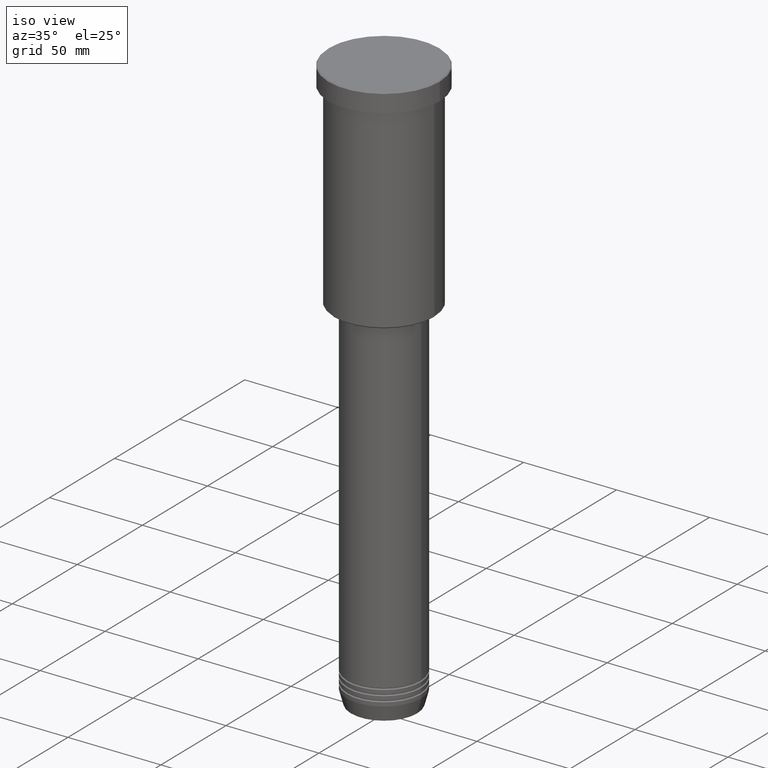
[diagram: clean part render]
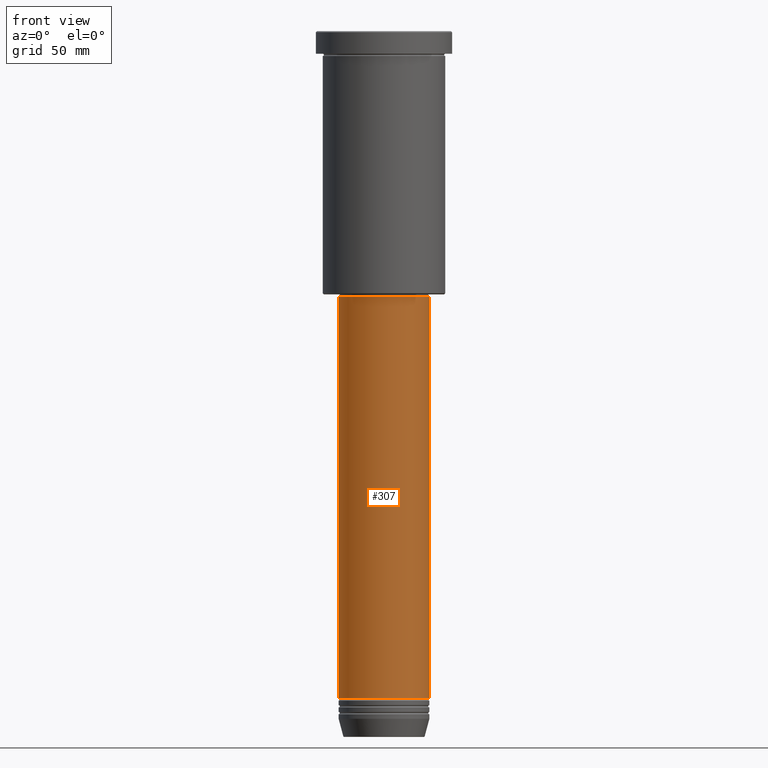
[diagram: tour spotlight — one face highlighted and labeled with its STEP entity id]
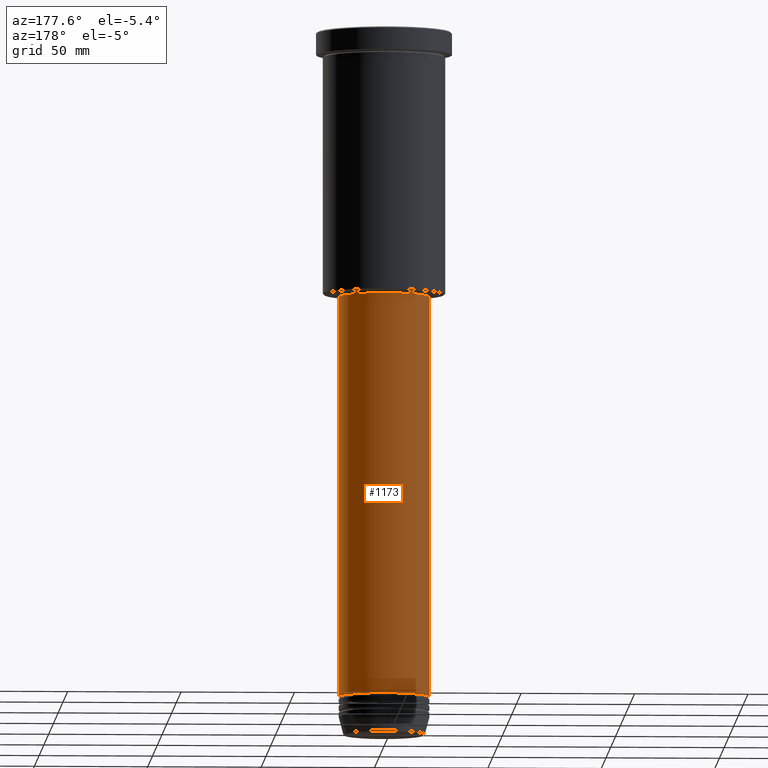
[diagram: tour spotlight — one face highlighted and labeled with its STEP entity id]
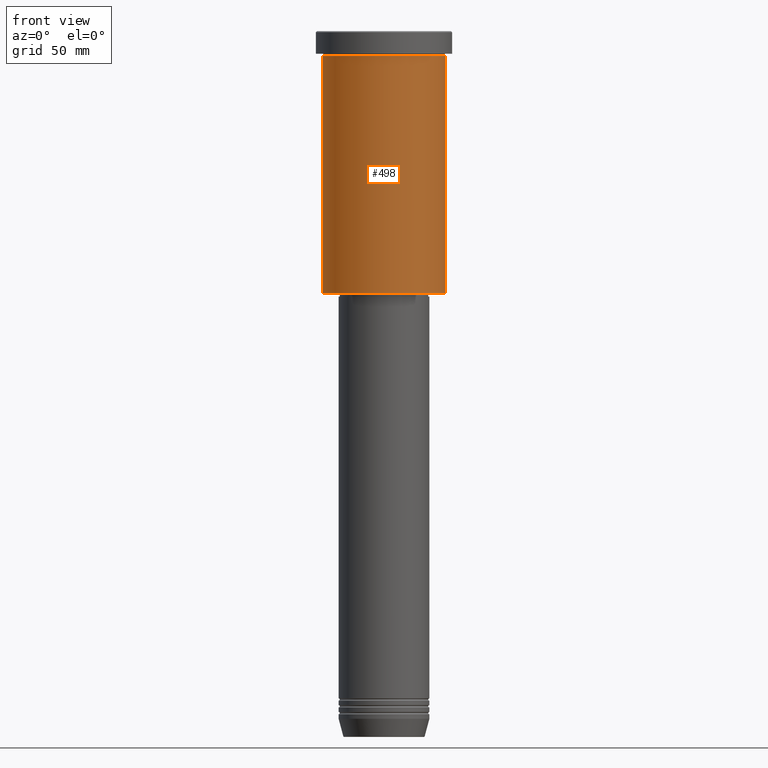
[diagram: tour spotlight — one face highlighted and labeled with its STEP entity id]
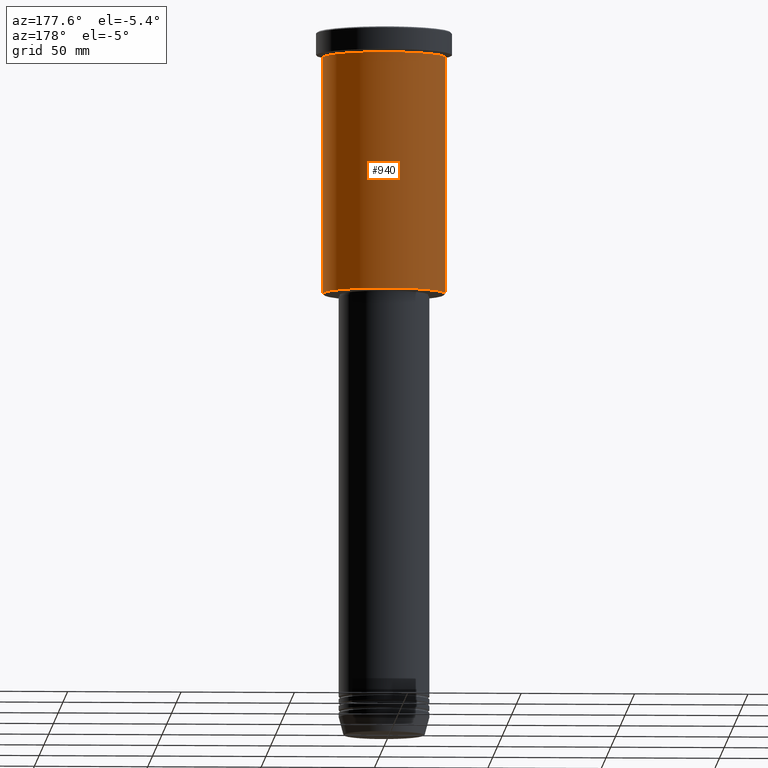
[diagram: tour spotlight — one face highlighted and labeled with its STEP entity id]
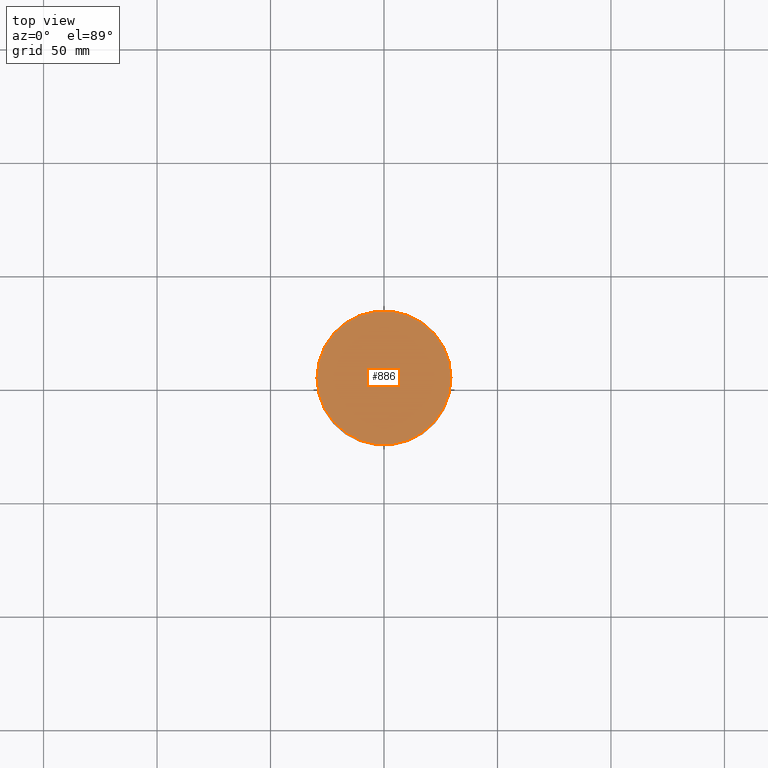
[diagram: tour spotlight — one face highlighted and labeled with its STEP entity id]
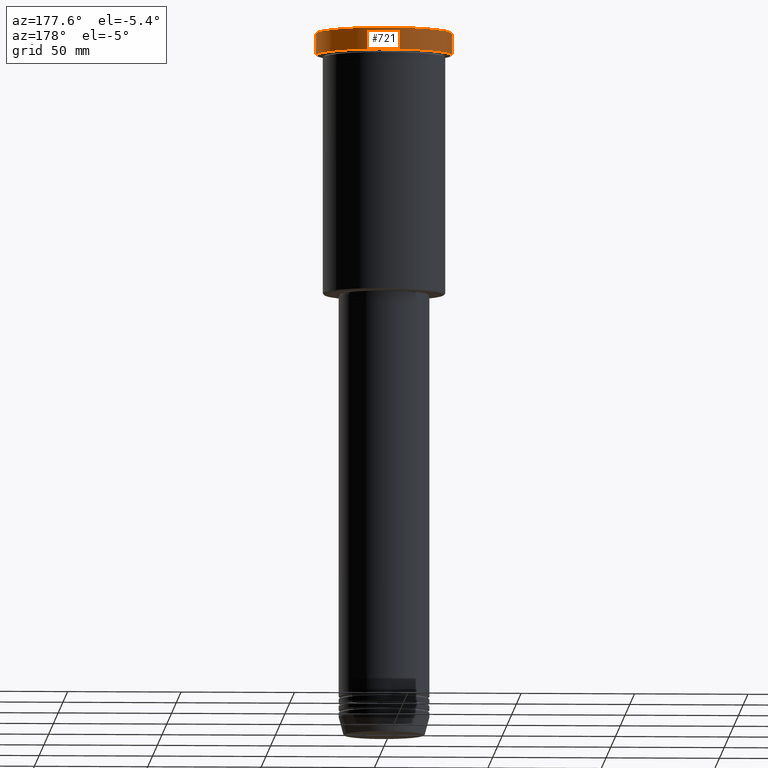
[diagram: tour spotlight — one face highlighted and labeled with its STEP entity id]
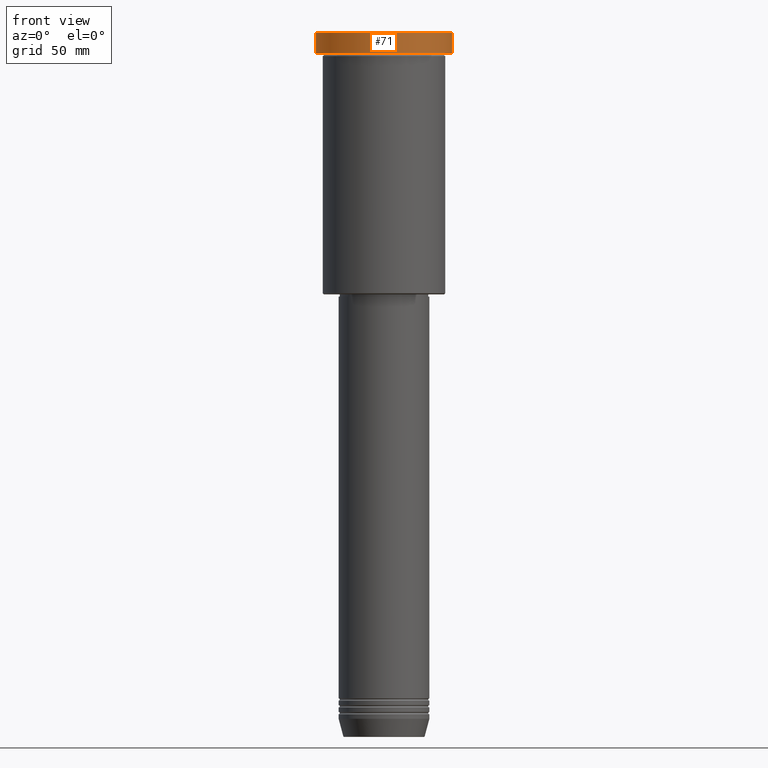
[diagram: tour spotlight — one face highlighted and labeled with its STEP entity id]
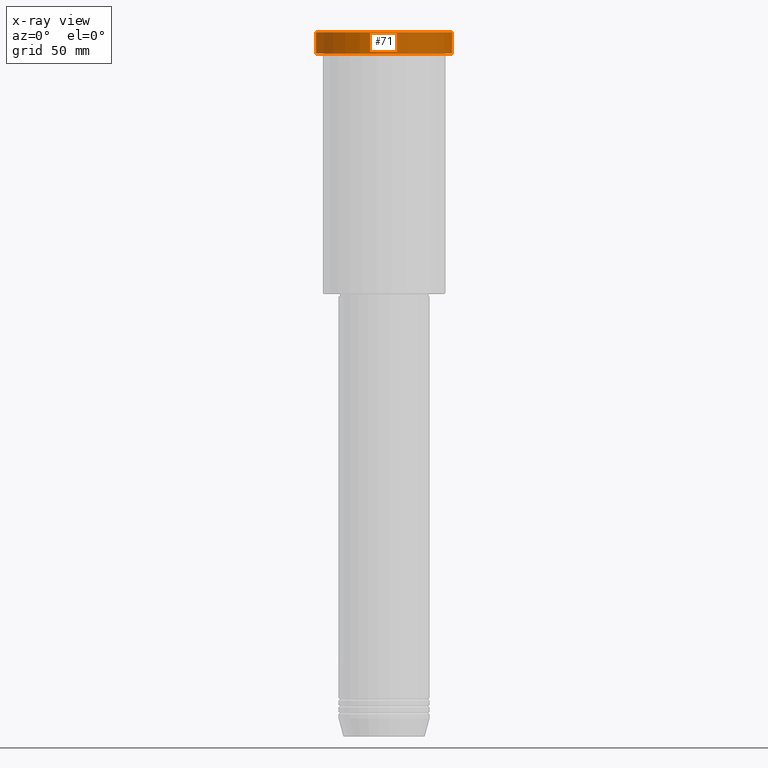
[diagram: x-ray of the same camera — body ghosted, this tour face saturated]
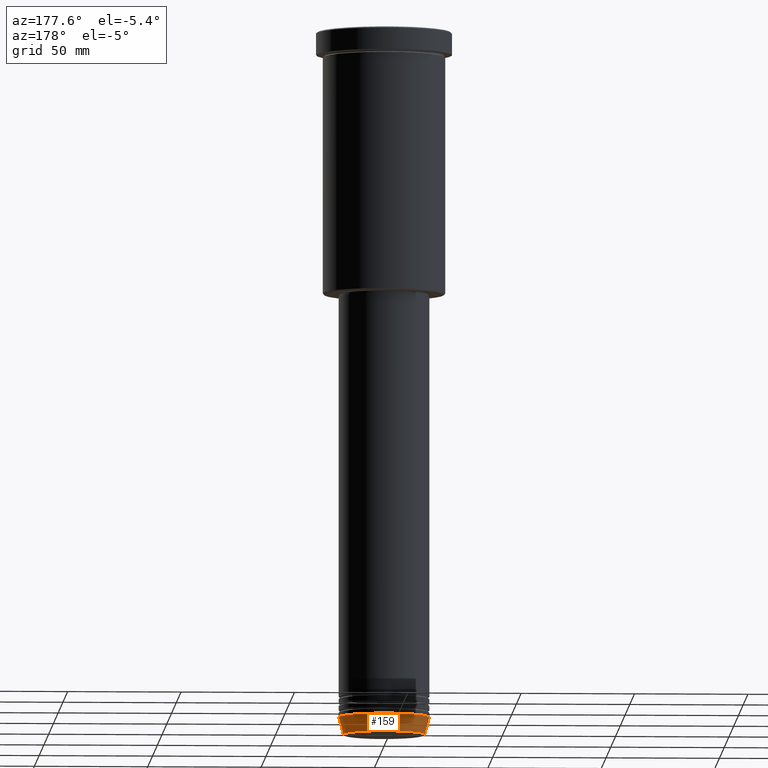
[diagram: tour spotlight — one face highlighted and labeled with its STEP entity id]
A machine part: a face-by-face anatomy tour. The part has 43 B-rep faces; the first image is the clean iso view, then the 8 largest visible faces are spotlighted one at a time (largest first), each with its STEP entity span.

Face 1 — front view, entity #307. In plain terms, the highlighted cylindrical surface (partial cylindrical patch) has radius 20 mm, axis along (-0, -0, 1).
Definition (entity closure, byte-faithful):
#7 = ORIENTED_EDGE ( 'NONE', *, *, #54, .F. ) ;
#54 = EDGE_CURVE ( 'NONE', #1033, #444, #610, .T. ) ;
#65 = DIRECTION ( 'NONE',  ( -0.000000000000000000, -0.000000000000000000, 1.000000000000000000 ) ) ;
#83 = DIRECTION ( 'NONE',  ( 1.000000000000000000, 0.000000000000000000, 0.000000000000000000 ) ) ;
#89 = CARTESIAN_POINT ( 'NONE',  ( -20.00000000000000000, 2.449293598294706513E-15, -294.0000000000000000 ) ) ;
#102 = LINE ( 'NONE', #950, #350 ) ;
#151 = AXIS2_PLACEMENT_3D ( 'NONE', #529, #65, #987 ) ;
#191 = AXIS2_PLACEMENT_3D ( 'NONE', #377, #736, #1105 ) ;
#307 = ADVANCED_FACE ( 'NONE', ( #559 ), #659, .T. ) ;
#308 = CARTESIAN_POINT ( 'NONE',  ( 20.00000000000000000, 0.000000000000000000, -116.9999999999999147 ) ) ;
#327 = EDGE_CURVE ( 'NONE', #556, #444, #102, .T. ) ;
#329 = CARTESIAN_POINT ( 'NONE',  ( -20.00000000000000000, 2.449293598294706513E-15, -116.9999999999999147 ) ) ;
#350 = VECTOR ( 'NONE', #1136, 1000.000000000000000 ) ;
#356 = LINE ( 'NONE', #455, #404 ) ;
#377 = CARTESIAN_POINT ( 'NONE',  ( 0.000000000000000000, 0.000000000000000000, 0.000000000000000000 ) ) ;
#404 = VECTOR ( 'NONE', #817, 1000.000000000000000 ) ;
#444 = VERTEX_POINT ( 'NONE', #308 ) ;
#455 = CARTESIAN_POINT ( 'NONE',  ( -20.00000000000000000, 2.449293598294706513E-15, 0.000000000000000000 ) ) ;
#502 = ORIENTED_EDGE ( 'NONE', *, *, #1132, .T. ) ;
#516 = CARTESIAN_POINT ( 'NONE',  ( 20.00000000000000000, 0.000000000000000000, -294.0000000000000000 ) ) ;
#529 = CARTESIAN_POINT ( 'NONE',  ( 0.000000000000000000, 0.000000000000000000, -116.9999999999999147 ) ) ;
#556 = VERTEX_POINT ( 'NONE', #516 ) ;
#559 = FACE_OUTER_BOUND ( 'NONE', #618, .T. ) ;
#609 = AXIS2_PLACEMENT_3D ( 'NONE', #821, #645, #83 ) ;
#610 = CIRCLE ( 'NONE', #151, 20.00000000000000000 ) ;
#618 = EDGE_LOOP ( 'NONE', ( #836, #502, #1084, #7 ) ) ;
#645 = DIRECTION ( 'NONE',  ( -0.000000000000000000, -0.000000000000000000, 1.000000000000000000 ) ) ;
#648 = CIRCLE ( 'NONE', #609, 20.00000000000000000 ) ;
#656 = EDGE_CURVE ( 'NONE', #660, #1033, #356, .T. ) ;
#659 = CYLINDRICAL_SURFACE ( 'NONE', #191, 20.00000000000000000 ) ;
#660 = VERTEX_POINT ( 'NONE', #89 ) ;
#736 = DIRECTION ( 'NONE',  ( -0.000000000000000000, -0.000000000000000000, 1.000000000000000000 ) ) ;
#817 = DIRECTION ( 'NONE',  ( -0.000000000000000000, -0.000000000000000000, 1.000000000000000000 ) ) ;
#821 = CARTESIAN_POINT ( 'NONE',  ( 0.000000000000000000, 0.000000000000000000, -294.0000000000000000 ) ) ;
#836 = ORIENTED_EDGE ( 'NONE', *, *, #656, .F. ) ;
#950 = CARTESIAN_POINT ( 'NONE',  ( 20.00000000000000000, 0.000000000000000000, 0.000000000000000000 ) ) ;
#987 = DIRECTION ( 'NONE',  ( 1.000000000000000000, 0.000000000000000000, 0.000000000000000000 ) ) ;
#1033 = VERTEX_POINT ( 'NONE', #329 ) ;
#1084 = ORIENTED_EDGE ( 'NONE', *, *, #327, .T. ) ;
#1105 = DIRECTION ( 'NONE',  ( 1.000000000000000000, 0.000000000000000000, 0.000000000000000000 ) ) ;
#1132 = EDGE_CURVE ( 'NONE', #660, #556, #648, .T. ) ;
#1136 = DIRECTION ( 'NONE',  ( -0.000000000000000000, -0.000000000000000000, 1.000000000000000000 ) ) ;

Face 2 — auxiliary view, entity #1173. In plain terms, the highlighted cylindrical surface (partial cylindrical patch) has radius 20 mm, axis along (-0, -0, 1).
Definition (entity closure, byte-faithful):
#64 = EDGE_LOOP ( 'NONE', ( #333, #1175, #272, #644 ) ) ;
#70 = CARTESIAN_POINT ( 'NONE',  ( 0.000000000000000000, 0.000000000000000000, 0.000000000000000000 ) ) ;
#89 = CARTESIAN_POINT ( 'NONE',  ( -20.00000000000000000, 2.449293598294706513E-15, -294.0000000000000000 ) ) ;
#102 = LINE ( 'NONE', #950, #350 ) ;
#183 = CYLINDRICAL_SURFACE ( 'NONE', #577, 20.00000000000000000 ) ;
#242 = DIRECTION ( 'NONE',  ( -0.000000000000000000, -0.000000000000000000, 1.000000000000000000 ) ) ;
#261 = DIRECTION ( 'NONE',  ( 1.000000000000000000, 0.000000000000000000, 0.000000000000000000 ) ) ;
#272 = ORIENTED_EDGE ( 'NONE', *, *, #953, .F. ) ;
#308 = CARTESIAN_POINT ( 'NONE',  ( 20.00000000000000000, 0.000000000000000000, -116.9999999999999147 ) ) ;
#327 = EDGE_CURVE ( 'NONE', #556, #444, #102, .T. ) ;
#329 = CARTESIAN_POINT ( 'NONE',  ( -20.00000000000000000, 2.449293598294706513E-15, -116.9999999999999147 ) ) ;
#333 = ORIENTED_EDGE ( 'NONE', *, *, #550, .T. ) ;
#337 = DIRECTION ( 'NONE',  ( 1.000000000000000000, 0.000000000000000000, 0.000000000000000000 ) ) ;
#350 = VECTOR ( 'NONE', #1136, 1000.000000000000000 ) ;
#356 = LINE ( 'NONE', #455, #404 ) ;
#404 = VECTOR ( 'NONE', #817, 1000.000000000000000 ) ;
#444 = VERTEX_POINT ( 'NONE', #308 ) ;
#455 = CARTESIAN_POINT ( 'NONE',  ( -20.00000000000000000, 2.449293598294706513E-15, 0.000000000000000000 ) ) ;
#466 = FACE_OUTER_BOUND ( 'NONE', #64, .T. ) ;
#512 = DIRECTION ( 'NONE',  ( -0.000000000000000000, -0.000000000000000000, 1.000000000000000000 ) ) ;
#515 = CARTESIAN_POINT ( 'NONE',  ( 0.000000000000000000, 0.000000000000000000, -116.9999999999999147 ) ) ;
#516 = CARTESIAN_POINT ( 'NONE',  ( 20.00000000000000000, 0.000000000000000000, -294.0000000000000000 ) ) ;
#520 = CIRCLE ( 'NONE', #1127, 20.00000000000000000 ) ;
#536 = AXIS2_PLACEMENT_3D ( 'NONE', #515, #242, #1051 ) ;
#550 = EDGE_CURVE ( 'NONE', #556, #660, #520, .T. ) ;
#556 = VERTEX_POINT ( 'NONE', #516 ) ;
#577 = AXIS2_PLACEMENT_3D ( 'NONE', #70, #1174, #261 ) ;
#644 = ORIENTED_EDGE ( 'NONE', *, *, #327, .F. ) ;
#656 = EDGE_CURVE ( 'NONE', #660, #1033, #356, .T. ) ;
#660 = VERTEX_POINT ( 'NONE', #89 ) ;
#708 = CARTESIAN_POINT ( 'NONE',  ( 0.000000000000000000, 0.000000000000000000, -294.0000000000000000 ) ) ;
#742 = CIRCLE ( 'NONE', #536, 20.00000000000000000 ) ;
#817 = DIRECTION ( 'NONE',  ( -0.000000000000000000, -0.000000000000000000, 1.000000000000000000 ) ) ;
#950 = CARTESIAN_POINT ( 'NONE',  ( 20.00000000000000000, 0.000000000000000000, 0.000000000000000000 ) ) ;
#953 = EDGE_CURVE ( 'NONE', #444, #1033, #742, .T. ) ;
#1033 = VERTEX_POINT ( 'NONE', #329 ) ;
#1051 = DIRECTION ( 'NONE',  ( 1.000000000000000000, 0.000000000000000000, 0.000000000000000000 ) ) ;
#1127 = AXIS2_PLACEMENT_3D ( 'NONE', #708, #512, #337 ) ;
#1136 = DIRECTION ( 'NONE',  ( -0.000000000000000000, -0.000000000000000000, 1.000000000000000000 ) ) ;
#1173 = ADVANCED_FACE ( 'NONE', ( #466 ), #183, .T. ) ;
#1174 = DIRECTION ( 'NONE',  ( -0.000000000000000000, -0.000000000000000000, 1.000000000000000000 ) ) ;
#1175 = ORIENTED_EDGE ( 'NONE', *, *, #656, .T. ) ;

Face 3 — front view, entity #498. In plain terms, the highlighted cylindrical surface (partial cylindrical patch) has radius 27 mm, axis along (-0, -0, 1).
Definition (entity closure, byte-faithful):
#2 = CIRCLE ( 'NONE', #801, 27.00000000000000355 ) ;
#6 = CARTESIAN_POINT ( 'NONE',  ( 27.00000000000000355, 0.000000000000000000, -10.99999999999999289 ) ) ;
#18 = EDGE_LOOP ( 'NONE', ( #1009, #198, #231, #123 ) ) ;
#32 = EDGE_CURVE ( 'NONE', #62, #732, #69, .T. ) ;
#48 = EDGE_CURVE ( 'NONE', #1041, #732, #1038, .T. ) ;
#62 = VERTEX_POINT ( 'NONE', #981 ) ;
#69 = LINE ( 'NONE', #620, #1130 ) ;
#107 = EDGE_CURVE ( 'NONE', #1121, #1041, #625, .T. ) ;
#123 = ORIENTED_EDGE ( 'NONE', *, *, #48, .F. ) ;
#198 = ORIENTED_EDGE ( 'NONE', *, *, #1096, .T. ) ;
#231 = ORIENTED_EDGE ( 'NONE', *, *, #32, .T. ) ;
#332 = DIRECTION ( 'NONE',  ( -0.000000000000000000, -0.000000000000000000, 1.000000000000000000 ) ) ;
#348 = CARTESIAN_POINT ( 'NONE',  ( 0.000000000000000000, 0.000000000000000000, 0.000000000000000000 ) ) ;
#407 = AXIS2_PLACEMENT_3D ( 'NONE', #348, #599, #613 ) ;
#449 = DIRECTION ( 'NONE',  ( -1.000000000000000000, 0.000000000000000000, 0.000000000000000000 ) ) ;
#498 = ADVANCED_FACE ( 'NONE', ( #985 ), #1171, .T. ) ;
#535 = DIRECTION ( 'NONE',  ( -0.000000000000000000, -0.000000000000000000, 1.000000000000000000 ) ) ;
#599 = DIRECTION ( 'NONE',  ( -0.000000000000000000, -0.000000000000000000, 1.000000000000000000 ) ) ;
#601 = CARTESIAN_POINT ( 'NONE',  ( -27.00000000000000355, 3.306546357697854128E-15, -10.99999999999999289 ) ) ;
#613 = DIRECTION ( 'NONE',  ( 1.000000000000000000, 0.000000000000000000, 0.000000000000000000 ) ) ;
#620 = CARTESIAN_POINT ( 'NONE',  ( 27.00000000000000355, 0.000000000000000000, 0.000000000000000000 ) ) ;
#625 = LINE ( 'NONE', #993, #937 ) ;
#630 = AXIS2_PLACEMENT_3D ( 'NONE', #1071, #780, #1061 ) ;
#732 = VERTEX_POINT ( 'NONE', #6 ) ;
#780 = DIRECTION ( 'NONE',  ( -0.000000000000000000, -0.000000000000000000, 1.000000000000000000 ) ) ;
#801 = AXIS2_PLACEMENT_3D ( 'NONE', #812, #535, #449 ) ;
#812 = CARTESIAN_POINT ( 'NONE',  ( 0.000000000000000000, 0.000000000000000000, -115.4999999999999716 ) ) ;
#937 = VECTOR ( 'NONE', #1067, 1000.000000000000000 ) ;
#981 = CARTESIAN_POINT ( 'NONE',  ( 27.00000000000000355, 0.000000000000000000, -115.4999999999999716 ) ) ;
#985 = FACE_OUTER_BOUND ( 'NONE', #18, .T. ) ;
#993 = CARTESIAN_POINT ( 'NONE',  ( -27.00000000000000355, 3.306546357697854128E-15, 0.000000000000000000 ) ) ;
#997 = CARTESIAN_POINT ( 'NONE',  ( -27.00000000000000355, 3.306546357697854128E-15, -115.4999999999999716 ) ) ;
#1009 = ORIENTED_EDGE ( 'NONE', *, *, #107, .F. ) ;
#1038 = CIRCLE ( 'NONE', #630, 27.00000000000000355 ) ;
#1041 = VERTEX_POINT ( 'NONE', #601 ) ;
#1061 = DIRECTION ( 'NONE',  ( 1.000000000000000000, 0.000000000000000000, 0.000000000000000000 ) ) ;
#1067 = DIRECTION ( 'NONE',  ( -0.000000000000000000, -0.000000000000000000, 1.000000000000000000 ) ) ;
#1071 = CARTESIAN_POINT ( 'NONE',  ( 0.000000000000000000, 0.000000000000000000, -10.99999999999999289 ) ) ;
#1096 = EDGE_CURVE ( 'NONE', #1121, #62, #2, .T. ) ;
#1121 = VERTEX_POINT ( 'NONE', #997 ) ;
#1130 = VECTOR ( 'NONE', #332, 1000.000000000000000 ) ;
#1171 = CYLINDRICAL_SURFACE ( 'NONE', #407, 27.00000000000000355 ) ;

Face 4 — auxiliary view, entity #940. In plain terms, the highlighted cylindrical surface (partial cylindrical patch) has radius 27 mm, axis along (-0, -0, 1).
Definition (entity closure, byte-faithful):
#6 = CARTESIAN_POINT ( 'NONE',  ( 27.00000000000000355, 0.000000000000000000, -10.99999999999999289 ) ) ;
#32 = EDGE_CURVE ( 'NONE', #62, #732, #69, .T. ) ;
#62 = VERTEX_POINT ( 'NONE', #981 ) ;
#69 = LINE ( 'NONE', #620, #1130 ) ;
#101 = EDGE_CURVE ( 'NONE', #732, #1041, #650, .T. ) ;
#107 = EDGE_CURVE ( 'NONE', #1121, #1041, #625, .T. ) ;
#145 = DIRECTION ( 'NONE',  ( -1.000000000000000000, 0.000000000000000000, 0.000000000000000000 ) ) ;
#146 = DIRECTION ( 'NONE',  ( -0.000000000000000000, -0.000000000000000000, 1.000000000000000000 ) ) ;
#148 = AXIS2_PLACEMENT_3D ( 'NONE', #603, #1145, #145 ) ;
#196 = ORIENTED_EDGE ( 'NONE', *, *, #101, .F. ) ;
#235 = DIRECTION ( 'NONE',  ( -0.000000000000000000, -0.000000000000000000, 1.000000000000000000 ) ) ;
#332 = DIRECTION ( 'NONE',  ( -0.000000000000000000, -0.000000000000000000, 1.000000000000000000 ) ) ;
#405 = AXIS2_PLACEMENT_3D ( 'NONE', #961, #235, #1154 ) ;
#517 = DIRECTION ( 'NONE',  ( 1.000000000000000000, 0.000000000000000000, 0.000000000000000000 ) ) ;
#537 = EDGE_CURVE ( 'NONE', #62, #1121, #1144, .T. ) ;
#601 = CARTESIAN_POINT ( 'NONE',  ( -27.00000000000000355, 3.306546357697854128E-15, -10.99999999999999289 ) ) ;
#603 = CARTESIAN_POINT ( 'NONE',  ( 0.000000000000000000, 0.000000000000000000, -115.4999999999999716 ) ) ;
#620 = CARTESIAN_POINT ( 'NONE',  ( 27.00000000000000355, 0.000000000000000000, 0.000000000000000000 ) ) ;
#625 = LINE ( 'NONE', #993, #937 ) ;
#650 = CIRCLE ( 'NONE', #763, 27.00000000000000355 ) ;
#688 = ORIENTED_EDGE ( 'NONE', *, *, #537, .T. ) ;
#699 = FACE_OUTER_BOUND ( 'NONE', #751, .T. ) ;
#732 = VERTEX_POINT ( 'NONE', #6 ) ;
#751 = EDGE_LOOP ( 'NONE', ( #688, #1098, #196, #1080 ) ) ;
#763 = AXIS2_PLACEMENT_3D ( 'NONE', #1172, #146, #517 ) ;
#786 = CYLINDRICAL_SURFACE ( 'NONE', #405, 27.00000000000000355 ) ;
#937 = VECTOR ( 'NONE', #1067, 1000.000000000000000 ) ;
#940 = ADVANCED_FACE ( 'NONE', ( #699 ), #786, .T. ) ;
#961 = CARTESIAN_POINT ( 'NONE',  ( 0.000000000000000000, 0.000000000000000000, 0.000000000000000000 ) ) ;
#981 = CARTESIAN_POINT ( 'NONE',  ( 27.00000000000000355, 0.000000000000000000, -115.4999999999999716 ) ) ;
#993 = CARTESIAN_POINT ( 'NONE',  ( -27.00000000000000355, 3.306546357697854128E-15, 0.000000000000000000 ) ) ;
#997 = CARTESIAN_POINT ( 'NONE',  ( -27.00000000000000355, 3.306546357697854128E-15, -115.4999999999999716 ) ) ;
#1041 = VERTEX_POINT ( 'NONE', #601 ) ;
#1067 = DIRECTION ( 'NONE',  ( -0.000000000000000000, -0.000000000000000000, 1.000000000000000000 ) ) ;
#1080 = ORIENTED_EDGE ( 'NONE', *, *, #32, .F. ) ;
#1098 = ORIENTED_EDGE ( 'NONE', *, *, #107, .T. ) ;
#1121 = VERTEX_POINT ( 'NONE', #997 ) ;
#1130 = VECTOR ( 'NONE', #332, 1000.000000000000000 ) ;
#1144 = CIRCLE ( 'NONE', #148, 27.00000000000000355 ) ;
#1145 = DIRECTION ( 'NONE',  ( -0.000000000000000000, -0.000000000000000000, 1.000000000000000000 ) ) ;
#1154 = DIRECTION ( 'NONE',  ( 1.000000000000000000, 0.000000000000000000, 0.000000000000000000 ) ) ;
#1172 = CARTESIAN_POINT ( 'NONE',  ( 0.000000000000000000, 0.000000000000000000, -10.99999999999999289 ) ) ;

Face 5 — top view, entity #886. In plain terms, the highlighted planar face has unit normal (0, -0, 1).
Definition (entity closure, byte-faithful):
#96 = DIRECTION ( 'NONE',  ( 1.000000000000000000, 0.000000000000000000, 0.000000000000000000 ) ) ;
#150 = CIRCLE ( 'NONE', #310, 29.50000000000000000 ) ;
#306 = CARTESIAN_POINT ( 'NONE',  ( 0.000000000000000000, 0.000000000000000000, 0.000000000000000000 ) ) ;
#310 = AXIS2_PLACEMENT_3D ( 'NONE', #367, #373, #729 ) ;
#367 = CARTESIAN_POINT ( 'NONE',  ( 0.000000000000000000, 0.000000000000000000, 0.000000000000000000 ) ) ;
#373 = DIRECTION ( 'NONE',  ( -0.000000000000000000, -0.000000000000000000, 1.000000000000000000 ) ) ;
#440 = AXIS2_PLACEMENT_3D ( 'NONE', #306, #1046, #586 ) ;
#477 = PLANE ( 'NONE',  #440 ) ;
#479 = CIRCLE ( 'NONE', #1053, 29.50000000000000000 ) ;
#542 = CARTESIAN_POINT ( 'NONE',  ( 29.50000000000000000, 3.643324227463375391E-15, 0.000000000000000000 ) ) ;
#566 = EDGE_LOOP ( 'NONE', ( #1116, #931 ) ) ;
#586 = DIRECTION ( 'NONE',  ( 1.000000000000000000, 0.000000000000000000, 0.000000000000000000 ) ) ;
#728 = VERTEX_POINT ( 'NONE', #542 ) ;
#729 = DIRECTION ( 'NONE',  ( 1.000000000000000000, 0.000000000000000000, 0.000000000000000000 ) ) ;
#747 = EDGE_CURVE ( 'NONE', #789, #728, #479, .T. ) ;
#768 = CARTESIAN_POINT ( 'NONE',  ( -29.50000000000000000, 0.000000000000000000, 0.000000000000000000 ) ) ;
#789 = VERTEX_POINT ( 'NONE', #768 ) ;
#886 = ADVANCED_FACE ( 'NONE', ( #1135 ), #477, .T. ) ;
#909 = DIRECTION ( 'NONE',  ( -0.000000000000000000, -0.000000000000000000, 1.000000000000000000 ) ) ;
#913 = CARTESIAN_POINT ( 'NONE',  ( 0.000000000000000000, 0.000000000000000000, 0.000000000000000000 ) ) ;
#931 = ORIENTED_EDGE ( 'NONE', *, *, #1117, .T. ) ;
#1046 = DIRECTION ( 'NONE',  ( 0.000000000000000000, -0.000000000000000000, 1.000000000000000000 ) ) ;
#1053 = AXIS2_PLACEMENT_3D ( 'NONE', #913, #909, #96 ) ;
#1116 = ORIENTED_EDGE ( 'NONE', *, *, #747, .T. ) ;
#1117 = EDGE_CURVE ( 'NONE', #728, #789, #150, .T. ) ;
#1135 = FACE_OUTER_BOUND ( 'NONE', #566, .T. ) ;

Face 6 — auxiliary view, entity #721. In plain terms, the highlighted cylindrical surface (partial cylindrical patch) has radius 30 mm, axis along (-0, -0, 1).
Definition (entity closure, byte-faithful):
#24 = VERTEX_POINT ( 'NONE', #162 ) ;
#53 = EDGE_LOOP ( 'NONE', ( #683, #911, #719, #494 ) ) ;
#78 = VECTOR ( 'NONE', #571, 1000.000000000000000 ) ;
#108 = LINE ( 'NONE', #478, #78 ) ;
#116 = CARTESIAN_POINT ( 'NONE',  ( 0.000000000000000000, 0.000000000000000000, -9.999999999999992895 ) ) ;
#132 = CARTESIAN_POINT ( 'NONE',  ( 30.00000000000000000, 0.000000000000000000, -0.5000000000000073275 ) ) ;
#139 = CARTESIAN_POINT ( 'NONE',  ( 30.00000000000000000, 0.000000000000000000, 0.000000000000000000 ) ) ;
#162 = CARTESIAN_POINT ( 'NONE',  ( -30.00000000000000000, 3.673940397442059178E-15, -0.5000000000000073275 ) ) ;
#194 = DIRECTION ( 'NONE',  ( 1.000000000000000000, 0.000000000000000000, 0.000000000000000000 ) ) ;
#230 = VERTEX_POINT ( 'NONE', #473 ) ;
#240 = EDGE_CURVE ( 'NONE', #24, #805, #904, .T. ) ;
#248 = CARTESIAN_POINT ( 'NONE',  ( -30.00000000000000000, 3.673940397442059178E-15, -9.999999999999992895 ) ) ;
#323 = LINE ( 'NONE', #139, #422 ) ;
#330 = CIRCLE ( 'NONE', #555, 30.00000000000000000 ) ;
#354 = EDGE_CURVE ( 'NONE', #1027, #24, #108, .T. ) ;
#375 = FACE_OUTER_BOUND ( 'NONE', #53, .T. ) ;
#391 = DIRECTION ( 'NONE',  ( 1.000000000000000000, 0.000000000000000000, 0.000000000000000000 ) ) ;
#393 = EDGE_CURVE ( 'NONE', #230, #1027, #330, .T. ) ;
#422 = VECTOR ( 'NONE', #770, 1000.000000000000000 ) ;
#473 = CARTESIAN_POINT ( 'NONE',  ( 30.00000000000000000, 0.000000000000000000, -9.999999999999992895 ) ) ;
#478 = CARTESIAN_POINT ( 'NONE',  ( -30.00000000000000000, 3.673940397442059178E-15, 0.000000000000000000 ) ) ;
#494 = ORIENTED_EDGE ( 'NONE', *, *, #967, .F. ) ;
#555 = AXIS2_PLACEMENT_3D ( 'NONE', #116, #861, #391 ) ;
#571 = DIRECTION ( 'NONE',  ( -0.000000000000000000, -0.000000000000000000, 1.000000000000000000 ) ) ;
#642 = DIRECTION ( 'NONE',  ( -0.000000000000000000, -0.000000000000000000, 1.000000000000000000 ) ) ;
#683 = ORIENTED_EDGE ( 'NONE', *, *, #393, .T. ) ;
#719 = ORIENTED_EDGE ( 'NONE', *, *, #240, .T. ) ;
#721 = ADVANCED_FACE ( 'NONE', ( #375 ), #813, .T. ) ;
#770 = DIRECTION ( 'NONE',  ( -0.000000000000000000, -0.000000000000000000, 1.000000000000000000 ) ) ;
#805 = VERTEX_POINT ( 'NONE', #132 ) ;
#813 = CYLINDRICAL_SURFACE ( 'NONE', #862, 30.00000000000000000 ) ;
#825 = DIRECTION ( 'NONE',  ( 0.000000000000000000, 0.000000000000000000, -1.000000000000000000 ) ) ;
#861 = DIRECTION ( 'NONE',  ( -0.000000000000000000, -0.000000000000000000, 1.000000000000000000 ) ) ;
#862 = AXIS2_PLACEMENT_3D ( 'NONE', #1018, #642, #194 ) ;
#904 = CIRCLE ( 'NONE', #1057, 30.00000000000000000 ) ;
#911 = ORIENTED_EDGE ( 'NONE', *, *, #354, .T. ) ;
#920 = CARTESIAN_POINT ( 'NONE',  ( 0.000000000000000000, 0.000000000000000000, -0.5000000000000073275 ) ) ;
#967 = EDGE_CURVE ( 'NONE', #230, #805, #323, .T. ) ;
#1018 = CARTESIAN_POINT ( 'NONE',  ( 0.000000000000000000, 0.000000000000000000, 0.000000000000000000 ) ) ;
#1027 = VERTEX_POINT ( 'NONE', #248 ) ;
#1057 = AXIS2_PLACEMENT_3D ( 'NONE', #920, #825, #1097 ) ;
#1097 = DIRECTION ( 'NONE',  ( 1.000000000000000000, 0.000000000000000000, 0.000000000000000000 ) ) ;

Face 7 — front view, entity #71. An x-ray twin of the same camera follows (body ghosted, this face saturated) — the face is partly hidden behind the body. In plain terms, the highlighted cylindrical surface (partial cylindrical patch) has radius 30 mm, axis along (-0, -0, 1).
Definition (entity closure, byte-faithful):
#15 = ORIENTED_EDGE ( 'NONE', *, *, #797, .T. ) ;
#22 = DIRECTION ( 'NONE',  ( 1.000000000000000000, 0.000000000000000000, 0.000000000000000000 ) ) ;
#24 = VERTEX_POINT ( 'NONE', #162 ) ;
#71 = ADVANCED_FACE ( 'NONE', ( #533 ), #342, .T. ) ;
#78 = VECTOR ( 'NONE', #571, 1000.000000000000000 ) ;
#108 = LINE ( 'NONE', #478, #78 ) ;
#132 = CARTESIAN_POINT ( 'NONE',  ( 30.00000000000000000, 0.000000000000000000, -0.5000000000000073275 ) ) ;
#139 = CARTESIAN_POINT ( 'NONE',  ( 30.00000000000000000, 0.000000000000000000, 0.000000000000000000 ) ) ;
#140 = EDGE_CURVE ( 'NONE', #805, #24, #1017, .T. ) ;
#162 = CARTESIAN_POINT ( 'NONE',  ( -30.00000000000000000, 3.673940397442059178E-15, -0.5000000000000073275 ) ) ;
#217 = CARTESIAN_POINT ( 'NONE',  ( 0.000000000000000000, 0.000000000000000000, -9.999999999999992895 ) ) ;
#230 = VERTEX_POINT ( 'NONE', #473 ) ;
#248 = CARTESIAN_POINT ( 'NONE',  ( -30.00000000000000000, 3.673940397442059178E-15, -9.999999999999992895 ) ) ;
#254 = CARTESIAN_POINT ( 'NONE',  ( 0.000000000000000000, 0.000000000000000000, 0.000000000000000000 ) ) ;
#256 = ORIENTED_EDGE ( 'NONE', *, *, #140, .T. ) ;
#288 = ORIENTED_EDGE ( 'NONE', *, *, #967, .T. ) ;
#323 = LINE ( 'NONE', #139, #422 ) ;
#338 = DIRECTION ( 'NONE',  ( 0.000000000000000000, 0.000000000000000000, -1.000000000000000000 ) ) ;
#342 = CYLINDRICAL_SURFACE ( 'NONE', #1055, 30.00000000000000000 ) ;
#354 = EDGE_CURVE ( 'NONE', #1027, #24, #108, .T. ) ;
#400 = DIRECTION ( 'NONE',  ( -0.000000000000000000, -0.000000000000000000, 1.000000000000000000 ) ) ;
#422 = VECTOR ( 'NONE', #770, 1000.000000000000000 ) ;
#473 = CARTESIAN_POINT ( 'NONE',  ( 30.00000000000000000, 0.000000000000000000, -9.999999999999992895 ) ) ;
#478 = CARTESIAN_POINT ( 'NONE',  ( -30.00000000000000000, 3.673940397442059178E-15, 0.000000000000000000 ) ) ;
#525 = DIRECTION ( 'NONE',  ( 1.000000000000000000, 0.000000000000000000, 0.000000000000000000 ) ) ;
#533 = FACE_OUTER_BOUND ( 'NONE', #1125, .T. ) ;
#571 = DIRECTION ( 'NONE',  ( -0.000000000000000000, -0.000000000000000000, 1.000000000000000000 ) ) ;
#576 = ORIENTED_EDGE ( 'NONE', *, *, #354, .F. ) ;
#714 = DIRECTION ( 'NONE',  ( 1.000000000000000000, 0.000000000000000000, 0.000000000000000000 ) ) ;
#770 = DIRECTION ( 'NONE',  ( -0.000000000000000000, -0.000000000000000000, 1.000000000000000000 ) ) ;
#788 = CARTESIAN_POINT ( 'NONE',  ( 0.000000000000000000, 0.000000000000000000, -0.5000000000000073275 ) ) ;
#797 = EDGE_CURVE ( 'NONE', #1027, #230, #1165, .T. ) ;
#803 = AXIS2_PLACEMENT_3D ( 'NONE', #788, #338, #714 ) ;
#805 = VERTEX_POINT ( 'NONE', #132 ) ;
#967 = EDGE_CURVE ( 'NONE', #230, #805, #323, .T. ) ;
#1017 = CIRCLE ( 'NONE', #803, 30.00000000000000000 ) ;
#1027 = VERTEX_POINT ( 'NONE', #248 ) ;
#1035 = AXIS2_PLACEMENT_3D ( 'NONE', #217, #400, #22 ) ;
#1055 = AXIS2_PLACEMENT_3D ( 'NONE', #254, #1159, #525 ) ;
#1125 = EDGE_LOOP ( 'NONE', ( #576, #15, #288, #256 ) ) ;
#1159 = DIRECTION ( 'NONE',  ( -0.000000000000000000, -0.000000000000000000, 1.000000000000000000 ) ) ;
#1165 = CIRCLE ( 'NONE', #1035, 30.00000000000000000 ) ;

Face 8 — auxiliary view, entity #159. In plain terms, the highlighted conical surface has half-angle 15 deg.
Definition (entity closure, byte-faithful):
#9 = VERTEX_POINT ( 'NONE', #583 ) ;
#30 = ORIENTED_EDGE ( 'NONE', *, *, #340, .T. ) ;
#37 = CIRCLE ( 'NONE', #501, 17.95570587970606269 ) ;
#50 = DIRECTION ( 'NONE',  ( 1.000000000000000000, 0.000000000000000000, 0.000000000000000000 ) ) ;
#84 = CARTESIAN_POINT ( 'NONE',  ( 0.000000000000000000, 0.000000000000000000, -310.6294095225512706 ) ) ;
#131 = CIRCLE ( 'NONE', #841, 20.00000000000000000 ) ;
#159 = ADVANCED_FACE ( 'NONE', ( #246 ), #1092, .T. ) ;
#160 = CARTESIAN_POINT ( 'NONE',  ( 17.95570587970606269, 0.000000000000000000, -310.6294095225512706 ) ) ;
#211 = VERTEX_POINT ( 'NONE', #1000 ) ;
#236 = AXIS2_PLACEMENT_3D ( 'NONE', #606, #972, #889 ) ;
#246 = FACE_OUTER_BOUND ( 'NONE', #567, .T. ) ;
#279 = DIRECTION ( 'NONE',  ( -0.000000000000000000, -0.000000000000000000, 1.000000000000000000 ) ) ;
#283 = ORIENTED_EDGE ( 'NONE', *, *, #677, .T. ) ;
#340 = EDGE_CURVE ( 'NONE', #1161, #9, #587, .T. ) ;
#368 = DIRECTION ( 'NONE',  ( 0.2588190451025212391, 0.000000000000000000, 0.9659258262890680902 ) ) ;
#381 = DIRECTION ( 'NONE',  ( 1.000000000000000000, 0.000000000000000000, 0.000000000000000000 ) ) ;
#401 = DIRECTION ( 'NONE',  ( -0.2588190451025212391, 3.169619151431771721E-17, 0.9659258262890680902 ) ) ;
#421 = VECTOR ( 'NONE', #368, 1000.000000000000114 ) ;
#454 = CARTESIAN_POINT ( 'NONE',  ( -17.95570587970606269, 2.324116685748020582E-15, -310.6294095225512706 ) ) ;
#501 = AXIS2_PLACEMENT_3D ( 'NONE', #84, #279, #381 ) ;
#547 = CARTESIAN_POINT ( 'NONE',  ( 20.00000000000000000, 0.000000000000000000, -303.0000000000000000 ) ) ;
#567 = EDGE_LOOP ( 'NONE', ( #283, #30, #607, #745 ) ) ;
#583 = CARTESIAN_POINT ( 'NONE',  ( -20.00000000000000000, 2.449293598294706513E-15, -303.0000000000000000 ) ) ;
#587 = LINE ( 'NONE', #1120, #784 ) ;
#606 = CARTESIAN_POINT ( 'NONE',  ( 0.000000000000000000, 0.000000000000000000, -303.0000000000000000 ) ) ;
#607 = ORIENTED_EDGE ( 'NONE', *, *, #1023, .F. ) ;
#677 = EDGE_CURVE ( 'NONE', #1063, #1161, #37, .T. ) ;
#745 = ORIENTED_EDGE ( 'NONE', *, *, #759, .F. ) ;
#759 = EDGE_CURVE ( 'NONE', #1063, #211, #1095, .T. ) ;
#784 = VECTOR ( 'NONE', #401, 1000.000000000000114 ) ;
#841 = AXIS2_PLACEMENT_3D ( 'NONE', #1068, #877, #50 ) ;
#877 = DIRECTION ( 'NONE',  ( -0.000000000000000000, -0.000000000000000000, 1.000000000000000000 ) ) ;
#889 = DIRECTION ( 'NONE',  ( 1.000000000000000000, 0.000000000000000000, 0.000000000000000000 ) ) ;
#972 = DIRECTION ( 'NONE',  ( -0.000000000000000000, -0.000000000000000000, 1.000000000000000000 ) ) ;
#1000 = CARTESIAN_POINT ( 'NONE',  ( 20.00000000000000000, 0.000000000000000000, -303.0000000000000000 ) ) ;
#1023 = EDGE_CURVE ( 'NONE', #211, #9, #131, .T. ) ;
#1063 = VERTEX_POINT ( 'NONE', #160 ) ;
#1068 = CARTESIAN_POINT ( 'NONE',  ( 0.000000000000000000, 0.000000000000000000, -303.0000000000000000 ) ) ;
#1092 = CONICAL_SURFACE ( 'NONE', #236, 20.00000000000000000, 0.2617993877991499629 ) ;
#1095 = LINE ( 'NONE', #547, #421 ) ;
#1120 = CARTESIAN_POINT ( 'NONE',  ( -20.00000000000000000, 2.449293598294706513E-15, -303.0000000000000000 ) ) ;
#1161 = VERTEX_POINT ( 'NONE', #454 ) ;